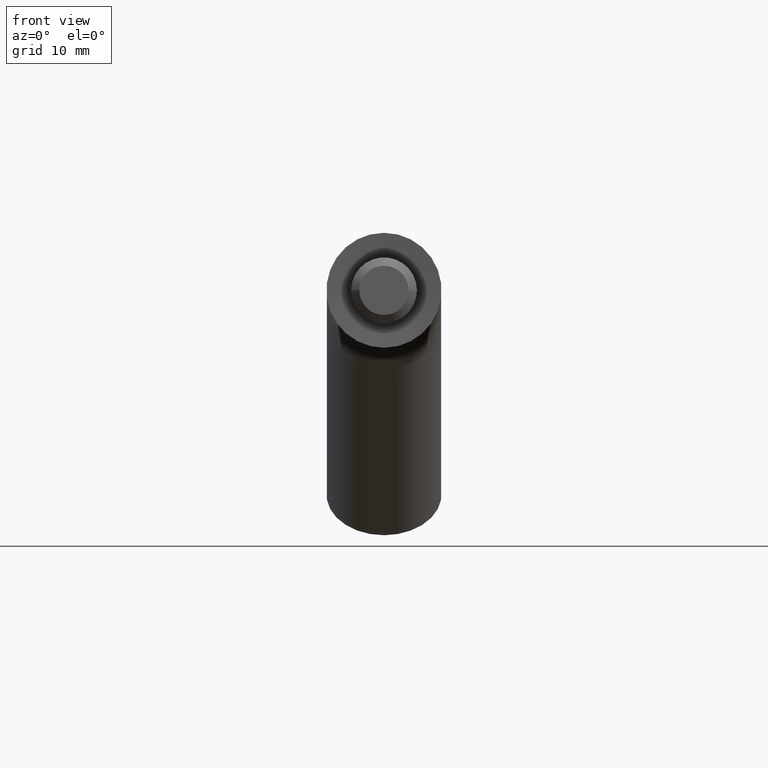
[diagram: clean part render]
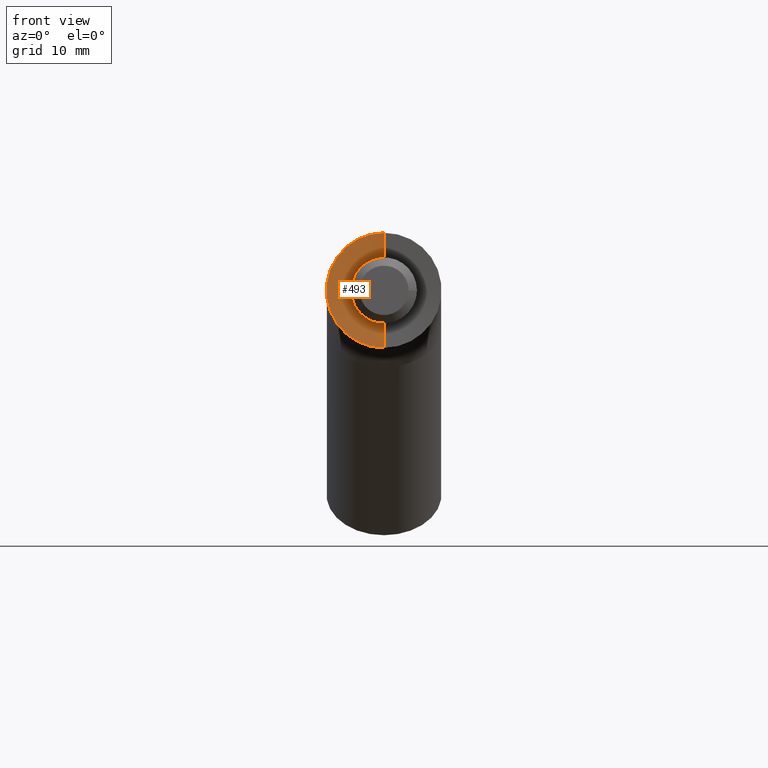
[diagram: same view with one face highlighted and labeled with its STEP entity id]
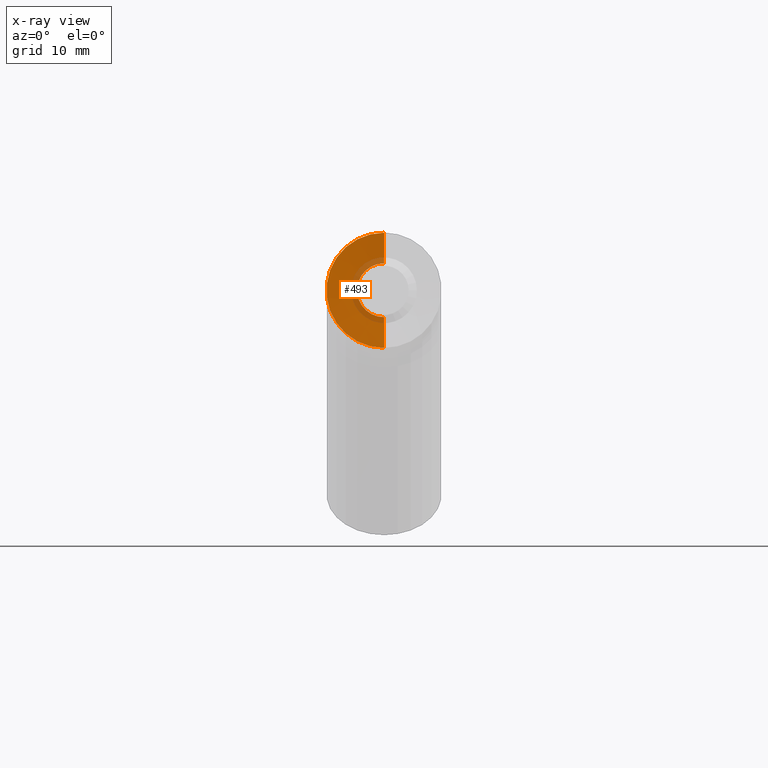
[diagram: x-ray of the same camera — body ghosted, the highlighted face saturated]
A machine part, front view. The second image highlights one B-rep face of the part: STEP entity #493.
The next image is the same camera in x-ray: the body ghosted, the highlighted face saturated — about 14% of this face is hidden behind the body in this view.
In plain terms, the highlighted conical surface has half-angle 85 deg.
Its self-contained STEP definition (entity closure, byte-faithful):
#98 = EDGE_CURVE ( 'NONE', #4116, #11772, #4341, .T. ) ;
#100 = CARTESIAN_POINT ( 'NONE',  ( 0.0000000000000000000, 0.0000000000000000000, -7.000000000000000000 ) ) ;
#256 = EDGE_CURVE ( 'NONE', #8612, #8685, #3643, .T. ) ;
#324 = EDGE_LOOP ( 'NONE', ( #2364, #10452, #11682, #4517 ) ) ;
#493 = ADVANCED_FACE ( 'NONE', ( #9807 ), #3191, .F. ) ;
#1043 = EDGE_CURVE ( 'NONE', #8612, #11772, #4622, .T. ) ;
#1349 = CARTESIAN_POINT ( 'NONE',  ( 0.0000000000000000000, 0.3261762033592852100, -3.271788935686912800 ) ) ;
#2168 = AXIS2_PLACEMENT_3D ( 'NONE', #11266, #9383, #9470 ) ;
#2364 = ORIENTED_EDGE ( 'NONE', *, *, #256, .T. ) ;
#2934 = DIRECTION ( 'NONE',  ( 0.0000000000000000000, -0.08715574274765128200, -0.9961946980917461000 ) ) ;
#2984 = CARTESIAN_POINT ( 'NONE',  ( 0.0000000000000000000, 0.0000000000000000000, 0.0000000000000000000 ) ) ;
#3191 = CONICAL_SURFACE ( 'NONE', #8688, 7.000000000000000000, 1.483529864195187100 ) ;
#3553 = LINE ( 'NONE', #6804, #4694 ) ;
#3643 = CIRCLE ( 'NONE', #2168, 3.271788935686912800 ) ;
#4116 = VERTEX_POINT ( 'NONE', #8064 ) ;
#4265 = CARTESIAN_POINT ( 'NONE',  ( 0.0000000000000000000, 0.0000000000000000000, -7.000000000000000000 ) ) ;
#4341 = CIRCLE ( 'NONE', #6227, 7.000000000000000000 ) ;
#4517 = ORIENTED_EDGE ( 'NONE', *, *, #1043, .F. ) ;
#4622 = LINE ( 'NONE', #100, #10950 ) ;
#4694 = VECTOR ( 'NONE', #10463, 1000.000000000000000 ) ;
#4861 = DIRECTION ( 'NONE',  ( -0.0000000000000000000, -1.000000000000000000, -0.0000000000000000000 ) ) ;
#5225 = EDGE_CURVE ( 'NONE', #8685, #4116, #3553, .T. ) ;
#6227 = AXIS2_PLACEMENT_3D ( 'NONE', #10057, #7308, #10978 ) ;
#6804 = CARTESIAN_POINT ( 'NONE',  ( 8.572527594031473200E-016, 0.0000000000000000000, 7.000000000000000000 ) ) ;
#7308 = DIRECTION ( 'NONE',  ( -0.0000000000000000000, -1.000000000000000000, -0.0000000000000000000 ) ) ;
#7711 = DIRECTION ( 'NONE',  ( 0.0000000000000000000, 0.0000000000000000000, -1.000000000000000000 ) ) ;
#8064 = CARTESIAN_POINT ( 'NONE',  ( 8.572527594031473200E-016, 0.0000000000000000000, 7.000000000000000000 ) ) ;
#8612 = VERTEX_POINT ( 'NONE', #1349 ) ;
#8685 = VERTEX_POINT ( 'NONE', #10541 ) ;
#8688 = AXIS2_PLACEMENT_3D ( 'NONE', #2984, #4861, #7711 ) ;
#9383 = DIRECTION ( 'NONE',  ( 0.0000000000000000000, 1.000000000000000000, 0.0000000000000000000 ) ) ;
#9470 = DIRECTION ( 'NONE',  ( 0.0000000000000000000, 0.0000000000000000000, -1.000000000000000000 ) ) ;
#9807 = FACE_OUTER_BOUND ( 'NONE', #324, .T. ) ;
#10057 = CARTESIAN_POINT ( 'NONE',  ( 0.0000000000000000000, 0.0000000000000000000, 0.0000000000000000000 ) ) ;
#10452 = ORIENTED_EDGE ( 'NONE', *, *, #5225, .T. ) ;
#10463 = DIRECTION ( 'NONE',  ( 1.219986648345620700E-016, -0.08715574274765128200, 0.9961946980917461000 ) ) ;
#10541 = CARTESIAN_POINT ( 'NONE',  ( 6.289656720803087700E-016, 0.3261762033592852100, 3.271788935686912800 ) ) ;
#10950 = VECTOR ( 'NONE', #2934, 1000.000000000000000 ) ;
#10978 = DIRECTION ( 'NONE',  ( 0.0000000000000000000, 0.0000000000000000000, -1.000000000000000000 ) ) ;
#11266 = CARTESIAN_POINT ( 'NONE',  ( 0.0000000000000000000, 0.3261762033592852100, 0.0000000000000000000 ) ) ;
#11682 = ORIENTED_EDGE ( 'NONE', *, *, #98, .T. ) ;
#11772 = VERTEX_POINT ( 'NONE', #4265 ) ;